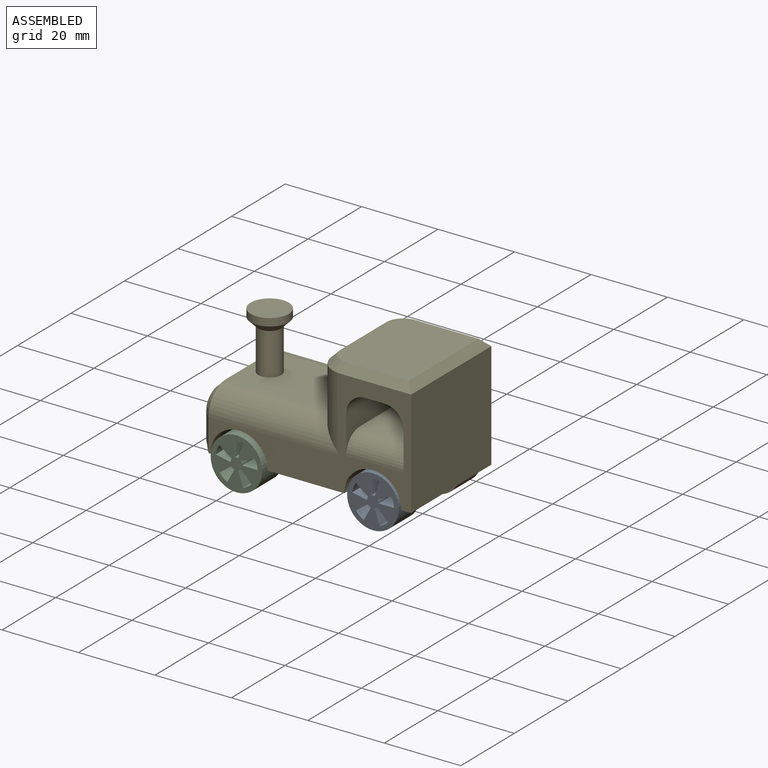
[diagram: assembled view]
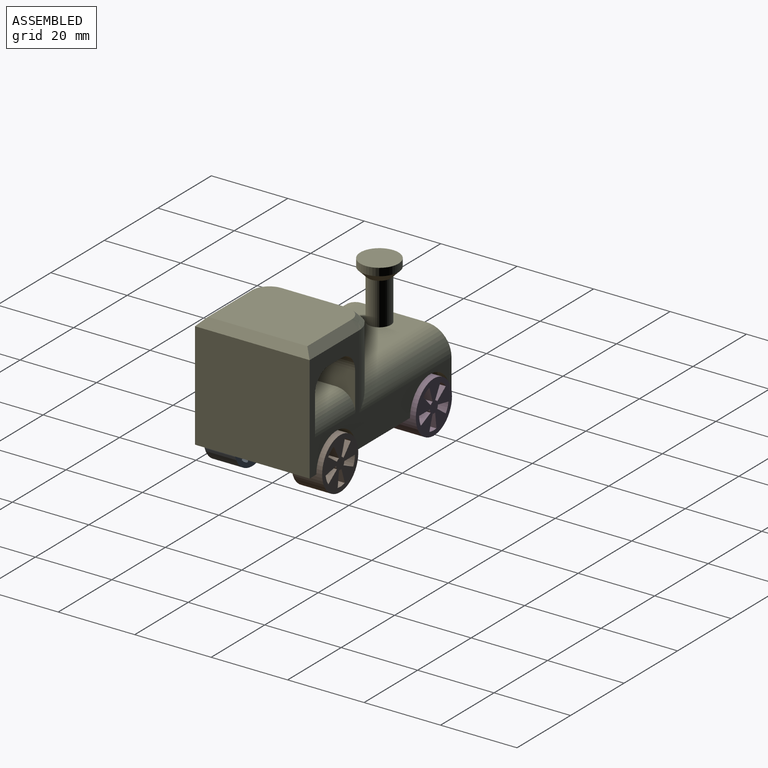
[diagram: assembled view, second angle]
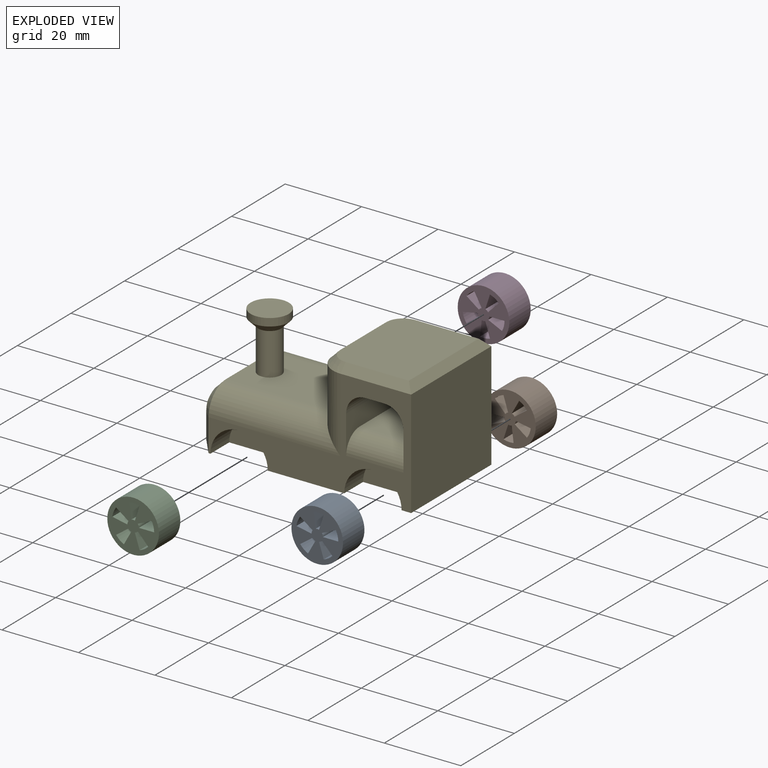
[diagram: exploded view]
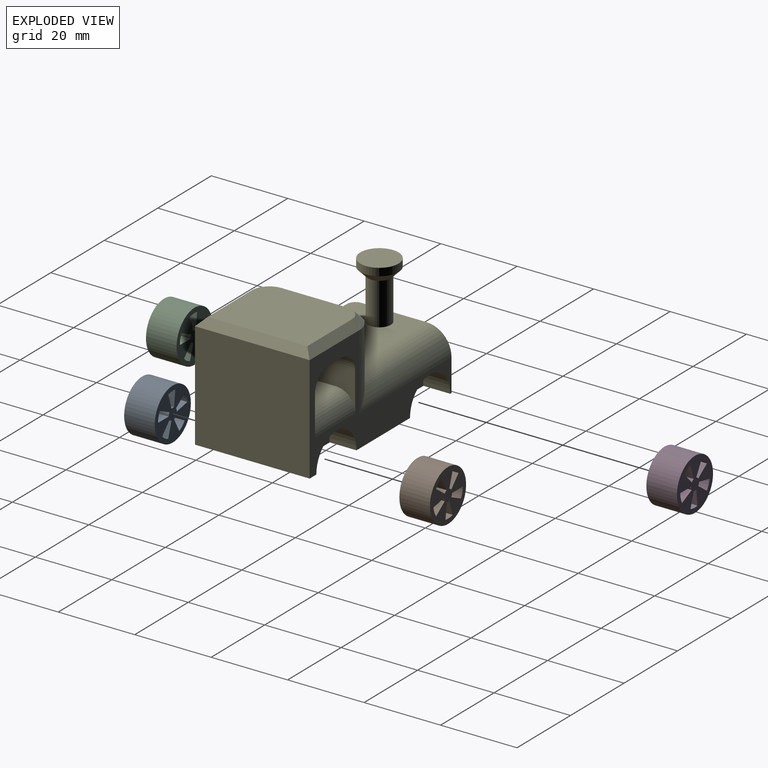
[diagram: exploded view, second angle]
ASSEMBLY  parts=5 mates=4
PART A: 23 faces, bbox 8x13.5x13.5 mm
  f0: plane 13.5x13.5mm, normal (1,0,0), area 106.9mm2, adj f2,f3,f4,f5,f6,f7,f8,f9
  f1: plane 13.5x13.5mm, normal (-1,0,0), area 106.9mm2, adj f2,f3,f4,f5,f6,f7,f8,f9
  f2: cylinder r=6.75mm len=13.5mm, axis (-1,0,0), area 339.3mm2, adj f0,f1
  f3: plane 8x3.8mm, normal (0,-0.31,0.95), area 32mm2, adj f0,f1,f4,f6
  f4: cylinder r=1.5mm len=8mm, axis (-1,0,0), area 7.5mm2, adj f0,f1,f3,f5
  f5: plane 8x2.94mm, normal (0,0.68,-0.73), area 32.2mm2, adj f0,f1,f4,f6
  f6: cylinder r=5.5mm len=8mm, axis (-1,0,0), area 21.5mm2, adj f0,f1,f3,f5
  f7: plane 8x3.24mm, normal (0,0.81,0.59), area 32mm2, adj f0,f1,f8,f10
  f8: cylinder r=1.5mm len=8mm, axis (-1,0,0), area 7.5mm2, adj f0,f1,f7,f9
  f9: plane 8x3.52mm, normal (0,-0.48,-0.87), area 32.2mm2, adj f0,f1,f8,f10
  f10: cylinder r=5.5mm len=8mm, axis (-1,0,0), area 21.5mm2, adj f0,f1,f7,f9
  f11: plane 8x3.24mm, normal (0,0.81,-0.59), area 32mm2, adj f0,f1,f12,f14
  f12: cylinder r=1.5mm len=8mm, axis (-1,0,0), area 7.5mm2, adj f0,f1,f11,f13
  f13: plane 8x3.95mm, normal (0,-0.98,0.19), area 32.2mm2, adj f0,f1,f12,f14
  f14: cylinder r=5.5mm len=8mm, axis (-1,0,0), area 21.5mm2, adj f0,f1,f11,f13
  f15: plane 8x3.64mm, normal (0,0.91,0.42), area 32.2mm2, adj f0,f1,f16,f18
  f16: cylinder r=5.5mm len=8mm, axis (-1,0,0), area 21.5mm2, adj f0,f1,f15,f17
  f17: plane 8x4mm, normal (0,-1,0), area 32mm2, adj f0,f1,f16,f18
  f18: cylinder r=1.5mm len=8mm, axis (-1,0,0), area 7.5mm2, adj f0,f1,f15,f17
  f19: plane 8x3.8mm, normal (0,-0.31,-0.95), area 32mm2, adj f0,f1,f20,f22
  f20: cylinder r=1.5mm len=8mm, axis (-1,0,0), area 7.5mm2, adj f0,f1,f19,f21
  f21: plane 8x3.99mm, normal (0,-0.12,0.99), area 32.2mm2, adj f0,f1,f20,f22
  f22: cylinder r=5.5mm len=8mm, axis (-1,0,0), area 21.5mm2, adj f0,f1,f19,f21
PART B: same geometry as A
PART C: same geometry as A
PART D: same geometry as A
PART E: 48 faces, bbox 56x30x30 mm
  f0: cylinder r=3mm len=11mm, axis (0,0,-1), area 207.3mm2, adj f7,f47
  f1: plane 53x28mm, normal (0,1,0), area 420.3mm2, adj f4,f6,f13,f15,f17,f18,f25,f28
  f2: plane 26x11mm, normal (-1,0,0), area 220.8mm2, adj f21,f22,f23,f24,f25,f26,f41,f43
  f3: plane 26x21mm, normal (0,0,1), area 537.3mm2, adj f27,f28,f29,f30,f31,f32
  f4: plane 30x28mm, normal (1,0,0), area 840mm2, adj f1,f5,f6,f30
  f5: plane 53x28mm, normal (0,-1,0), area 420.3mm2, adj f4,f6,f9,f11,f19,f20,f21,f32
  f6: plane 53x30mm, normal (0,0,-1), area 1170mm2, adj f1,f4,f5,f9,f10,f11,f12,f13
  f7: plane 28x17mm, normal (0,0,1), area 447.7mm2, adj f0,f8,f18,f19,f24
  f8: plane 17x13mm, normal (-1,0,0), area 221mm2, adj f7,f17,f20,f29
  f9: cylinder r=7.5mm len=15mm, axis (0,-1,0), area 164.9mm2, adj f5,f6,f10
  f10: plane 15x7.5mm, normal (0,-1,0), area 88.4mm2, adj f6,f9
  f11: cylinder r=7.5mm len=15mm, axis (0,-1,0), area 164.9mm2, adj f5,f6,f12
  f12: plane 15x7.5mm, normal (0,-1,0), area 88.4mm2, adj f6,f11
  f13: cylinder r=7.5mm len=15mm, axis (0,1,0), area 164.9mm2, adj f1,f6,f14
  f14: plane 15x7.5mm, normal (0,1,0), area 88.4mm2, adj f6,f13
  f15: cylinder r=7.5mm len=15mm, axis (0,1,0), area 164.9mm2, adj f1,f6,f16
  f16: plane 15x7.5mm, normal (0,1,0), area 88.4mm2, adj f6,f15
  f17: cylinder r=6.5mm len=19.5mm, axis (0,0,1), area 156.8mm2, adj f1,f8,f18,f27
  f18: cylinder r=6.5mm len=34.5mm, axis (1,0,0), area 310mm2, adj f1,f7,f17,f26
  f19: cylinder r=6.5mm len=34.5mm, axis (-1,0,0), area 310mm2, adj f5,f7,f20,f22
  f20: cylinder r=6.5mm len=19.5mm, axis (0,0,-1), area 156.8mm2, adj f5,f8,f19,f31
  f21: plane 8.5x2mm, normal (-0.71,-0.71,0), area 21.2mm2, adj f2,f5,f22,f23
  f22: cone r=4.5mm half-angle=45deg, axis (1,0,0), area 24.4mm2, adj f2,f19,f21,f24
  f23: plane 30x2mm, normal (-0.71,0,-0.71), area 79.2mm2, adj f2,f6,f21,f25
  f24: plane 17x2mm, normal (-0.71,0,0.71), area 48.1mm2, adj f2,f7,f22,f26
  f25: plane 8.5x2mm, normal (-0.71,0.71,0), area 21.2mm2, adj f1,f2,f23,f26
  f26: cone r=4.5mm half-angle=45deg, axis (1,0,0), area 24.4mm2, adj f2,f18,f24,f25
  f27: cone r=4.5mm half-angle=45deg, axis (0,0,-1), area 24.4mm2, adj f3,f17,f28,f29
  f28: plane 18.5x2mm, normal (0,0.71,0.71), area 49.5mm2, adj f1,f3,f27,f30
  f29: plane 17x2mm, normal (-0.71,0,0.71), area 48.1mm2, adj f3,f8,f27,f31
  f30: plane 30x2mm, normal (0.71,0,0.71), area 79.2mm2, adj f3,f4,f28,f32
  f31: cone r=4.5mm half-angle=45deg, axis (0,0,-1), area 24.4mm2, adj f3,f20,f29,f32
  f32: plane 18.5x2mm, normal (0,-0.71,0.71), area 49.5mm2, adj f3,f5,f30,f31
  f33: cylinder r=5mm len=30mm, axis (0,-1,0), area 235.6mm2, adj f1,f5,f34,f38
  f34: plane 30x5mm, normal (0,0,-1), area 150mm2, adj f1,f5,f33,f35
  f35: cylinder r=5mm len=30mm, axis (0,-1,0), area 235.6mm2, adj f1,f5,f34,f36
  f36: plane 30x10mm, normal (1,0,0), area 160.7mm2, adj f1,f5,f35,f37,f39,f40
  f37: plane 20x15mm, normal (0,0,1), area 300mm2, adj f36,f38,f39,f40
  f38: plane 30x10mm, normal (-1,0,0), area 160.7mm2, adj f1,f5,f33,f37,f39,f40
  f39: cylinder r=5mm len=15mm, axis (-1,0,0), area 117.8mm2, adj f5,f36,f37,f38
  f40: cylinder r=5mm len=15mm, axis (1,0,0), area 117.8mm2, adj f1,f36,f37,f38
  f41: cylinder r=3mm len=6mm, axis (1,0,0), area 18.8mm2, adj f2,f42
  f42: plane 6x6mm, normal (-1,0,0), area 28.3mm2, adj f41
  f43: cylinder r=3mm len=6mm, axis (1,0,0), area 18.8mm2, adj f2,f44
  f44: plane 6x6mm, normal (-1,0,0), area 28.3mm2, adj f43
  f45: cylinder r=5mm len=10mm, axis (0,0,1), area 62.8mm2, adj f46,f47
  f46: plane 10x10mm, normal (0,0,1), area 78.5mm2, adj f45
  f47: cone r=5mm half-angle=45deg, axis (0,0,1), area 71.1mm2, adj f0,f45
PLACE A rot(axis=(-0.58,0.58,-0.58),120deg) t=(17.5,-7,0)mm
PLACE B rot(axis=(0.58,-0.58,-0.58),120deg) t=(17.5,16,0)mm
PLACE C rot(axis=(-0.58,0.58,-0.58),120deg) t=(-17.5,-8,0)mm
PLACE D rot(axis=(0.58,0.58,0.58),120deg) t=(-17.5,8,0)mm
PLACE E at identity
MATE fastened D.f4 <-> E.f9  axis (0,-1,0) through (-17.5,8,0)mm
MATE fastened A.f4 <-> E.f11  axis (0,-1,0) through (17.5,-15,0)mm
MATE fastened C.f2 <-> E.f9  axis (0,1,0) through (-17.5,-8,0)mm
MATE fastened B.f4 <-> E.f11  axis (0,-1,0) through (17.5,8,0)mm
